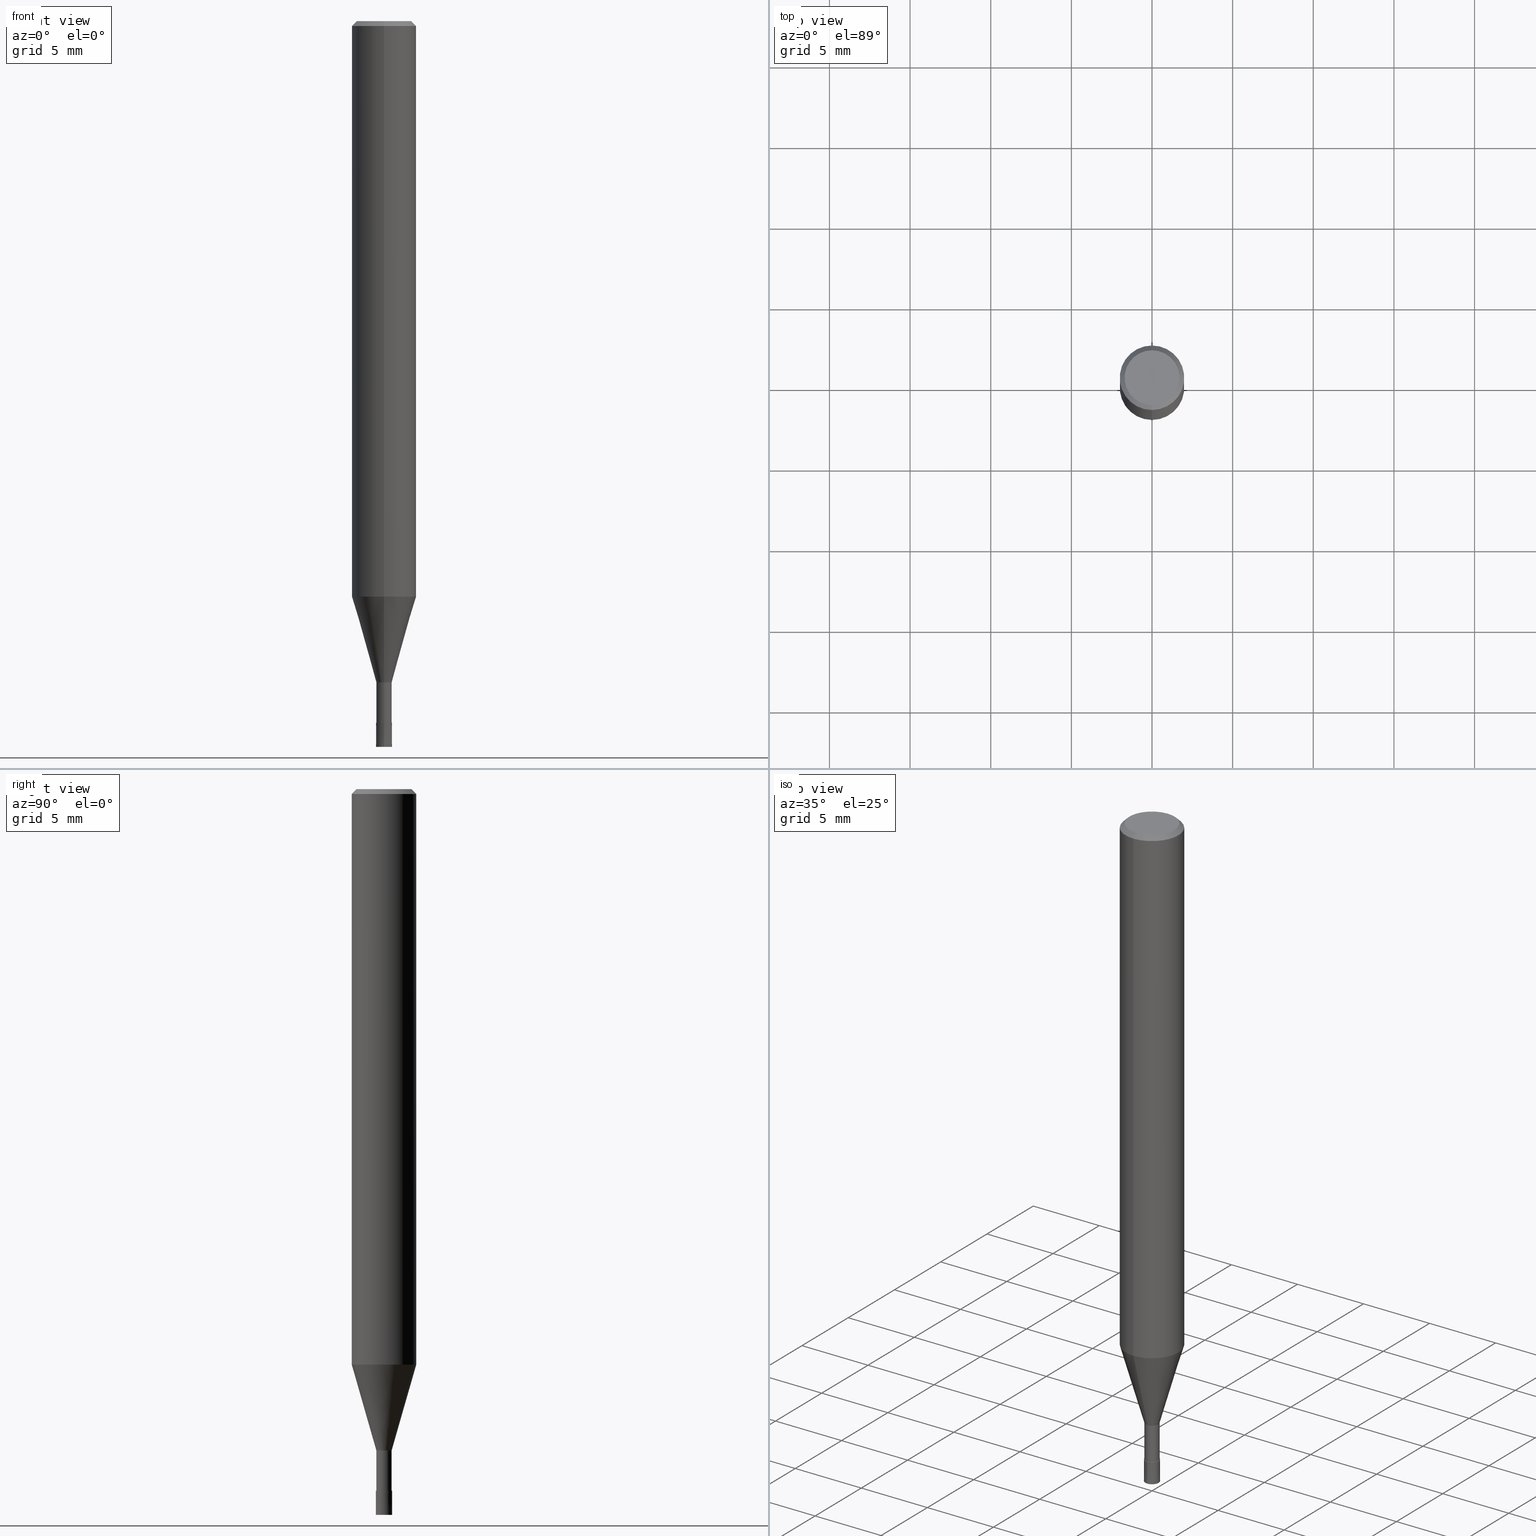
[diagram: canonical four-view strip — front | top / right | iso, engineering-drawing reading convention]
A machine part, canonical four-view strip (front | top / right | iso — engineering-drawing reading convention). The complete STEP part file that produces these views, byte-faithful:
ISO-10303-21;
HEADER;
FILE_DESCRIPTION(('no description'),'unknown implementation level');
FILE_NAME('HLS2010-040-Huellk.stp','  ',('CIMSOURCE GmbH'),('CADClick - KiM GmbH - www.kimweb.de'),'unknown preprocess','ACIS','unknown authorization');
FILE_SCHEMA(('automotive_design'));
ENDSEC;
DATA;
#1=MECHANICAL_DESIGN_GEOMETRIC_PRESENTATION_REPRESENTATION(' ',(#14,#15,#16,#17,#18,#19,#20,#21,#22,#23,#24,#25,#26,#27,#28,#29,#30,#31,#32,#33,#34,#35,#36,#37,#38,#39,#40,#41,#42,#43,#44,#45,#46,#47,#48,#49,#50,#51,#52,#53,#54,#55,#56,#57,#58,#59,#60,#61,#62,#63,#64,#65,#66,#67,#68,#69,#70,#71,#72),#10);
#2=PRODUCT_DEFINITION_CONTEXT('',#73,'design');
#3=APPLICATION_PROTOCOL_DEFINITION('INTERNATIONAL STANDARD','automotive_design',1994,#73);
#4=PRODUCT_CATEGORY_RELATIONSHIP('NONE','NONE',#74,#75);
#5=SHAPE_DEFINITION_REPRESENTATION(#76,#77);
#6=PRODUCT_DEFINITION_CONTEXT('',#78,'design');
#7=APPLICATION_PROTOCOL_DEFINITION('INTERNATIONAL STANDARD','automotive_design',1994,#78);
#8=PRODUCT_CATEGORY_RELATIONSHIP('NONE','NONE',#79,#80);
#9=SHAPE_DEFINITION_REPRESENTATION(#81,#82);
#10= (GEOMETRIC_REPRESENTATION_CONTEXT(3)GLOBAL_UNCERTAINTY_ASSIGNED_CONTEXT((#85))GLOBAL_UNIT_ASSIGNED_CONTEXT((#87,#88,#89))REPRESENTATION_CONTEXT('NONE','WORKSPACE'));
#14=STYLED_ITEM('',(#91),#92);
#15=STYLED_ITEM('',(#93),#94);
#16=STYLED_ITEM('',(#95),#96);
#17=STYLED_ITEM('',(#97),#98);
#18=STYLED_ITEM('',(#99),#100);
#19=STYLED_ITEM('',(#101),#102);
#20=STYLED_ITEM('',(#103),#104);
#21=STYLED_ITEM('',(#105),#106);
#22=STYLED_ITEM('',(#107),#108);
#23=STYLED_ITEM('',(#109),#110);
#24=STYLED_ITEM('',(#111),#112);
#25=STYLED_ITEM('',(#113),#114);
#26=STYLED_ITEM('',(#115),#116);
#27=STYLED_ITEM('',(#117),#118);
#28=STYLED_ITEM('',(#119),#120);
#29=STYLED_ITEM('',(#121),#122);
#30=STYLED_ITEM('',(#123),#124);
#31=STYLED_ITEM('',(#125),#126);
#32=STYLED_ITEM('',(#127),#128);
#33=STYLED_ITEM('',(#129),#130);
#34=STYLED_ITEM('',(#131),#132);
#35=STYLED_ITEM('',(#133),#134);
#36=STYLED_ITEM('',(#135),#136);
#37=STYLED_ITEM('',(#137),#138);
#38=STYLED_ITEM('',(#139),#140);
#39=STYLED_ITEM('',(#141),#142);
#40=STYLED_ITEM('',(#143),#144);
#41=STYLED_ITEM('',(#145),#146);
#42=STYLED_ITEM('',(#147),#148);
#43=STYLED_ITEM('',(#149),#150);
#44=STYLED_ITEM('',(#151),#152);
#45=STYLED_ITEM('',(#153),#154);
#46=STYLED_ITEM('',(#155),#156);
#47=STYLED_ITEM('',(#157),#158);
#48=STYLED_ITEM('',(#159),#160);
#49=STYLED_ITEM('',(#161),#162);
#50=STYLED_ITEM('',(#163),#164);
#51=STYLED_ITEM('',(#165),#166);
#52=STYLED_ITEM('',(#167),#168);
#53=STYLED_ITEM('',(#169),#170);
#54=STYLED_ITEM('',(#171),#172);
#55=STYLED_ITEM('',(#173),#174);
#56=STYLED_ITEM('',(#175),#176);
#57=STYLED_ITEM('',(#177),#178);
#58=STYLED_ITEM('',(#179),#180);
#59=STYLED_ITEM('',(#181),#182);
#60=STYLED_ITEM('',(#183),#184);
#61=STYLED_ITEM('',(#185),#186);
#62=STYLED_ITEM('',(#187),#188);
#63=STYLED_ITEM('',(#189),#190);
#64=STYLED_ITEM('',(#191),#192);
#65=STYLED_ITEM('',(#193),#194);
#66=STYLED_ITEM('',(#195),#196);
#67=STYLED_ITEM('',(#197),#198);
#68=STYLED_ITEM('',(#199),#200);
#69=STYLED_ITEM('',(#201),#202);
#70=STYLED_ITEM('',(#203),#204);
#71=STYLED_ITEM('',(#205),#206);
#72=STYLED_ITEM('',(#207),#208);
#73=APPLICATION_CONTEXT(' ');
#74=PRODUCT_CATEGORY('part','NONE');
#75=PRODUCT_RELATED_PRODUCT_CATEGORY('detail',' ',(#209));
#76=PRODUCT_DEFINITION_SHAPE('NONE','NONE',#210);
#77=ADVANCED_BREP_SHAPE_REPRESENTATION('1',(#156,#211),#10);
#78=APPLICATION_CONTEXT(' ');
#79=PRODUCT_CATEGORY('part','NONE');
#80=PRODUCT_RELATED_PRODUCT_CATEGORY('detail',' ',(#212));
#81=PRODUCT_DEFINITION_SHAPE('NONE','NONE',#213);
#82=ADVANCED_BREP_SHAPE_REPRESENTATION('2',(#184,#214),#10);
#85=UNCERTAINTY_MEASURE_WITH_UNIT(LENGTH_MEASURE(1.0E-006),#87,'','');
#87= (CONVERSION_BASED_UNIT('MILLIMETRE',#217)LENGTH_UNIT()NAMED_UNIT(#220));
#88= (NAMED_UNIT(#222)PLANE_ANGLE_UNIT()SI_UNIT($,.RADIAN.));
#89= (NAMED_UNIT(#222)SOLID_ANGLE_UNIT()SI_UNIT($,.STERADIAN.));
#91=PRESENTATION_STYLE_ASSIGNMENT((#228));
#92=ADVANCED_FACE('',(#229),#230,.T.);
#93=PRESENTATION_STYLE_ASSIGNMENT((#231));
#94=VERTEX_POINT('',#232);
#95=PRESENTATION_STYLE_ASSIGNMENT((#233));
#96=EDGE_CURVE('',#94,#188,#234,.T.);
#97=PRESENTATION_STYLE_ASSIGNMENT((#235));
#98=VERTEX_POINT('',#236);
#99=PRESENTATION_STYLE_ASSIGNMENT((#237));
#100=VERTEX_POINT('',#238);
#101=PRESENTATION_STYLE_ASSIGNMENT((#239));
#102=EDGE_CURVE('',#188,#100,#240,.T.);
#103=PRESENTATION_STYLE_ASSIGNMENT((#241));
#104=VERTEX_POINT('',#242);
#105=PRESENTATION_STYLE_ASSIGNMENT((#243));
#106=EDGE_CURVE('',#170,#112,#244,.T.);
#107=PRESENTATION_STYLE_ASSIGNMENT((#245));
#108=EDGE_CURVE('',#116,#174,#246,.T.);
#109=PRESENTATION_STYLE_ASSIGNMENT((#247));
#110=ADVANCED_FACE('',(#248),#249,.T.);
#111=PRESENTATION_STYLE_ASSIGNMENT((#250));
#112=VERTEX_POINT('',#251);
#113=PRESENTATION_STYLE_ASSIGNMENT((#252));
#114=EDGE_CURVE('',#204,#152,#253,.T.);
#115=PRESENTATION_STYLE_ASSIGNMENT((#254));
#116=VERTEX_POINT('',#255);
#117=PRESENTATION_STYLE_ASSIGNMENT((#256));
#118=ADVANCED_FACE('',(#257),#258,.T.);
#119=PRESENTATION_STYLE_ASSIGNMENT((#259));
#120=EDGE_CURVE('',#190,#94,#260,.T.);
#121=PRESENTATION_STYLE_ASSIGNMENT((#261));
#122=EDGE_CURVE('',#94,#190,#262,.T.);
#123=PRESENTATION_STYLE_ASSIGNMENT((#263));
#124=EDGE_CURVE('',#204,#112,#264,.T.);
#125=PRESENTATION_STYLE_ASSIGNMENT((#265));
#126=EDGE_CURVE('',#190,#140,#266,.T.);
#127=PRESENTATION_STYLE_ASSIGNMENT((#267));
#128=ADVANCED_FACE('',(#268),#269,.T.);
#129=PRESENTATION_STYLE_ASSIGNMENT((#270));
#130=EDGE_CURVE('',#174,#116,#271,.T.);
#131=PRESENTATION_STYLE_ASSIGNMENT((#272));
#132=ADVANCED_FACE('',(#273),#274,.T.);
#133=PRESENTATION_STYLE_ASSIGNMENT((#275));
#134=ADVANCED_FACE('',(#276),#277,.T.);
#135=PRESENTATION_STYLE_ASSIGNMENT((#278));
#136=VERTEX_POINT('',#279);
#137=PRESENTATION_STYLE_ASSIGNMENT((#280));
#138=ADVANCED_FACE('',(#281),#282,.T.);
#139=PRESENTATION_STYLE_ASSIGNMENT((#283));
#140=VERTEX_POINT('',#284);
#141=PRESENTATION_STYLE_ASSIGNMENT((#285));
#142=EDGE_CURVE('',#136,#186,#286,.T.);
#143=PRESENTATION_STYLE_ASSIGNMENT((#287));
#144=EDGE_CURVE('',#116,#186,#288,.T.);
#145=PRESENTATION_STYLE_ASSIGNMENT((#289));
#146=ADVANCED_FACE('',(#290),#291,.T.);
#147=PRESENTATION_STYLE_ASSIGNMENT((#292));
#148=EDGE_CURVE('',#170,#152,#293,.T.);
#149=PRESENTATION_STYLE_ASSIGNMENT((#294));
#150=EDGE_CURVE('',#152,#204,#295,.T.);
#151=PRESENTATION_STYLE_ASSIGNMENT((#296));
#152=VERTEX_POINT('',#297);
#153=PRESENTATION_STYLE_ASSIGNMENT((#298));
#154=EDGE_CURVE('',#140,#104,#299,.T.);
#155=PRESENTATION_STYLE_ASSIGNMENT((#300));
#156=MANIFOLD_SOLID_BREP('1',#301);
#157=PRESENTATION_STYLE_ASSIGNMENT((#302));
#158=EDGE_CURVE('',#100,#188,#303,.T.);
#159=PRESENTATION_STYLE_ASSIGNMENT((#304));
#160=ADVANCED_FACE('',(#305),#306,.T.);
#161=PRESENTATION_STYLE_ASSIGNMENT((#307));
#162=EDGE_CURVE('',#206,#98,#308,.T.);
#163=PRESENTATION_STYLE_ASSIGNMENT((#309));
#164=EDGE_CURVE('',#186,#136,#310,.T.);
#165=PRESENTATION_STYLE_ASSIGNMENT((#311));
#166=ADVANCED_FACE('',(#312),#313,.T.);
#167=PRESENTATION_STYLE_ASSIGNMENT((#314));
#168=ADVANCED_FACE('',(#315),#316,.T.);
#169=PRESENTATION_STYLE_ASSIGNMENT((#317));
#170=VERTEX_POINT('',#318);
#171=PRESENTATION_STYLE_ASSIGNMENT((#319));
#172=EDGE_CURVE('',#104,#94,#320,.T.);
#173=PRESENTATION_STYLE_ASSIGNMENT((#321));
#174=VERTEX_POINT('',#322);
#175=PRESENTATION_STYLE_ASSIGNMENT((#323));
#176=EDGE_CURVE('',#112,#170,#324,.T.);
#177=PRESENTATION_STYLE_ASSIGNMENT((#325));
#178=EDGE_CURVE('',#136,#174,#326,.T.);
#179=PRESENTATION_STYLE_ASSIGNMENT((#327));
#180=ADVANCED_FACE('',(#328),#329,.T.);
#181=PRESENTATION_STYLE_ASSIGNMENT((#330));
#182=EDGE_CURVE('',#112,#98,#331,.T.);
#183=PRESENTATION_STYLE_ASSIGNMENT((#332));
#184=MANIFOLD_SOLID_BREP('2',#333);
#185=PRESENTATION_STYLE_ASSIGNMENT((#334));
#186=VERTEX_POINT('',#335);
#187=PRESENTATION_STYLE_ASSIGNMENT((#336));
#188=VERTEX_POINT('',#337);
#189=PRESENTATION_STYLE_ASSIGNMENT((#338));
#190=VERTEX_POINT('',#339);
#191=PRESENTATION_STYLE_ASSIGNMENT((#340));
#192=EDGE_CURVE('',#104,#140,#341,.T.);
#193=PRESENTATION_STYLE_ASSIGNMENT((#342));
#194=EDGE_CURVE('',#98,#206,#343,.T.);
#195=PRESENTATION_STYLE_ASSIGNMENT((#344));
#196=ADVANCED_FACE('',(#345),#346,.T.);
#197=PRESENTATION_STYLE_ASSIGNMENT((#347));
#198=EDGE_CURVE('',#100,#190,#348,.T.);
#199=PRESENTATION_STYLE_ASSIGNMENT((#349));
#200=ADVANCED_FACE('',(#350,#351),#352,.T.);
#201=PRESENTATION_STYLE_ASSIGNMENT((#353));
#202=EDGE_CURVE('',#206,#170,#354,.T.);
#203=PRESENTATION_STYLE_ASSIGNMENT((#355));
#204=VERTEX_POINT('',#356);
#205=PRESENTATION_STYLE_ASSIGNMENT((#357));
#206=VERTEX_POINT('',#358);
#207=PRESENTATION_STYLE_ASSIGNMENT((#359));
#208=ADVANCED_FACE('',(#360),#361,.T.);
#209=PRODUCT('1','1','PART-1-DESC',(#362));
#210=PRODUCT_DEFINITION('NONE','NONE',#363,#2);
#211=AXIS2_PLACEMENT_3D('',#364,#365,#366);
#212=PRODUCT('2','2','PART-2-DESC',(#367));
#213=PRODUCT_DEFINITION('NONE','NONE',#368,#6);
#214=AXIS2_PLACEMENT_3D('',#369,#370,#371);
#217=LENGTH_MEASURE_WITH_UNIT(LENGTH_MEASURE(1.0),#372);
#220=DIMENSIONAL_EXPONENTS(1.0,0.0,0.0,0.0,0.0,0.0,0.0);
#222=DIMENSIONAL_EXPONENTS(0.0,0.0,0.0,0.0,0.0,0.0,0.0);
#228=SURFACE_STYLE_USAGE(.BOTH.,#373);
#229=FACE_OUTER_BOUND('',#374,.T.);
#230=CONICAL_SURFACE('',#375,1.85,0.785398163397453);
#231=POINT_STYLE(' ',#376,POSITIVE_LENGTH_MEASURE(1.0E-006),#377);
#232=CARTESIAN_POINT('',(0.0,2.0,-0.299999999999997));
#233=CURVE_STYLE('',#378,POSITIVE_LENGTH_MEASURE(1.0E-006),#379);
#234=LINE('',#380,#381);
#235=POINT_STYLE(' ',#382,POSITIVE_LENGTH_MEASURE(1.0E-006),#383);
#236=CARTESIAN_POINT('',(0.0,0.47495,-43.5));
#237=POINT_STYLE(' ',#384,POSITIVE_LENGTH_MEASURE(1.0E-006),#385);
#238=CARTESIAN_POINT('',(2.44921270764475E-016,-2.0,-35.682));
#239=CURVE_STYLE('',#386,POSITIVE_LENGTH_MEASURE(1.0E-006),#387);
#240=CIRCLE('',#388,2.0);
#241=POINT_STYLE(' ',#389,POSITIVE_LENGTH_MEASURE(1.0E-006),#390);
#242=CARTESIAN_POINT('',(0.0,1.7,0.0));
#243=CURVE_STYLE('',#391,POSITIVE_LENGTH_MEASURE(1.0E-006),#392);
#244=CIRCLE('',#393,0.47495);
#245=CURVE_STYLE('',#394,POSITIVE_LENGTH_MEASURE(1.0E-006),#395);
#246=CIRCLE('',#396,0.4999);
#247=SURFACE_STYLE_USAGE(.BOTH.,#397);
#248=FACE_OUTER_BOUND('',#398,.T.);
#249=CYLINDRICAL_SURFACE('',#399,2.0);
#250=POINT_STYLE(' ',#400,POSITIVE_LENGTH_MEASURE(1.0E-006),#401);
#251=CARTESIAN_POINT('',(0.0,0.47495,-41.0));
#252=CURVE_STYLE('',#402,POSITIVE_LENGTH_MEASURE(1.0E-006),#403);
#253=CIRCLE('',#404,1.99995);
#254=POINT_STYLE(' ',#405,POSITIVE_LENGTH_MEASURE(1.0E-006),#406);
#255=CARTESIAN_POINT('',(0.0,0.4999,-43.5));
#256=SURFACE_STYLE_USAGE(.BOTH.,#407);
#257=FACE_OUTER_BOUND('',#408,.T.);
#258=PLANE('',#409);
#259=CURVE_STYLE('',#410,POSITIVE_LENGTH_MEASURE(1.0E-006),#411);
#260=CIRCLE('',#412,2.0);
#261=CURVE_STYLE('',#413,POSITIVE_LENGTH_MEASURE(1.0E-006),#414);
#262=CIRCLE('',#415,2.0);
#263=CURVE_STYLE('',#416,POSITIVE_LENGTH_MEASURE(1.0E-006),#417);
#264=LINE('',#418,#419);
#265=CURVE_STYLE('',#420,POSITIVE_LENGTH_MEASURE(1.0E-006),#421);
#266=LINE('',#422,#423);
#267=SURFACE_STYLE_USAGE(.BOTH.,#424);
#268=FACE_OUTER_BOUND('',#425,.T.);
#269=CONICAL_SURFACE('',#426,1.85,0.785398163397453);
#270=CURVE_STYLE('',#427,POSITIVE_LENGTH_MEASURE(1.0E-006),#428);
#271=CIRCLE('',#429,0.4999);
#272=SURFACE_STYLE_USAGE(.BOTH.,#430);
#273=FACE_OUTER_BOUND('',#431,.T.);
#274=PLANE('',#432);
#275=SURFACE_STYLE_USAGE(.BOTH.,#433);
#276=FACE_OUTER_BOUND('',#434,.T.);
#277=CYLINDRICAL_SURFACE('',#435,2.0);
#278=POINT_STYLE(' ',#436,POSITIVE_LENGTH_MEASURE(1.0E-006),#437);
#279=CARTESIAN_POINT('',(6.12303176911189E-017,-0.5,-45.0));
#280=SURFACE_STYLE_USAGE(.BOTH.,#438);
#281=FACE_OUTER_BOUND('',#439,.T.);
#282=PLANE('',#440);
#283=POINT_STYLE(' ',#441,POSITIVE_LENGTH_MEASURE(1.0E-006),#442);
#284=CARTESIAN_POINT('',(2.08183080149804E-016,-1.7,0.0));
#285=CURVE_STYLE('',#443,POSITIVE_LENGTH_MEASURE(1.0E-006),#444);
#286=CIRCLE('',#445,0.5);
#287=CURVE_STYLE('',#446,POSITIVE_LENGTH_MEASURE(1.0E-006),#447);
#288=LINE('',#448,#449);
#289=SURFACE_STYLE_USAGE(.BOTH.,#450);
#290=FACE_OUTER_BOUND('',#451,.T.);
#291=CYLINDRICAL_SURFACE('',#452,0.47495);
#292=CURVE_STYLE('',#453,POSITIVE_LENGTH_MEASURE(1.0E-006),#454);
#293=LINE('',#455,#456);
#294=CURVE_STYLE('',#457,POSITIVE_LENGTH_MEASURE(1.0E-006),#458);
#295=CIRCLE('',#459,1.99995);
#296=POINT_STYLE(' ',#460,POSITIVE_LENGTH_MEASURE(1.0E-006),#461);
#297=CARTESIAN_POINT('',(2.44915147732706E-016,-1.99995,-35.682));
#298=CURVE_STYLE('',#462,POSITIVE_LENGTH_MEASURE(1.0E-006),#463);
#299=CIRCLE('',#464,1.7);
#300=SURFACE_STYLE_USAGE(.BOTH.,#465);
#301=CLOSED_SHELL('',(#146,#168,#134,#92,#200,#138,#128,#110,#160,#208,#118));
#302=CURVE_STYLE('',#466,POSITIVE_LENGTH_MEASURE(1.0E-006),#467);
#303=CIRCLE('',#468,2.0);
#304=SURFACE_STYLE_USAGE(.BOTH.,#469);
#305=FACE_OUTER_BOUND('',#470,.T.);
#306=CONICAL_SURFACE('',#471,1.23745,0.279267977304115);
#307=CURVE_STYLE('',#472,POSITIVE_LENGTH_MEASURE(1.0E-006),#473);
#308=CIRCLE('',#474,0.47495);
#309=CURVE_STYLE('',#475,POSITIVE_LENGTH_MEASURE(1.0E-006),#476);
#310=CIRCLE('',#477,0.5);
#311=SURFACE_STYLE_USAGE(.BOTH.,#478);
#312=FACE_OUTER_BOUND('',#479,.T.);
#313=CONICAL_SURFACE('',#480,0.49995,6.66666665678939E-005);
#314=SURFACE_STYLE_USAGE(.BOTH.,#481);
#315=FACE_OUTER_BOUND('',#482,.T.);
#316=CONICAL_SURFACE('',#483,1.23745,0.279267977304115);
#317=POINT_STYLE(' ',#484,POSITIVE_LENGTH_MEASURE(1.0E-006),#485);
#318=CARTESIAN_POINT('',(5.81626787747938E-017,-0.47495,-41.0));
#319=CURVE_STYLE('',#486,POSITIVE_LENGTH_MEASURE(1.0E-006),#487);
#320=LINE('',#488,#489);
#321=POINT_STYLE(' ',#490,POSITIVE_LENGTH_MEASURE(1.0E-006),#491);
#322=CARTESIAN_POINT('',(6.12180716275806E-017,-0.4999,-43.5));
#323=CURVE_STYLE('',#492,POSITIVE_LENGTH_MEASURE(1.0E-006),#493);
#324=CIRCLE('',#494,0.47495);
#325=CURVE_STYLE('',#495,POSITIVE_LENGTH_MEASURE(1.0E-006),#496);
#326=LINE('',#497,#498);
#327=SURFACE_STYLE_USAGE(.BOTH.,#499);
#328=FACE_OUTER_BOUND('',#500,.T.);
#329=PLANE('',#501);
#330=CURVE_STYLE('',#502,POSITIVE_LENGTH_MEASURE(1.0E-006),#503);
#331=LINE('',#504,#505);
#332=SURFACE_STYLE_USAGE(.BOTH.,#506);
#333=CLOSED_SHELL('',(#166,#132,#196,#180));
#334=POINT_STYLE(' ',#507,POSITIVE_LENGTH_MEASURE(1.0E-006),#508);
#335=CARTESIAN_POINT('',(0.0,0.5,-45.0));
#336=POINT_STYLE(' ',#509,POSITIVE_LENGTH_MEASURE(1.0E-006),#510);
#337=CARTESIAN_POINT('',(0.0,2.0,-35.682));
#338=POINT_STYLE(' ',#511,POSITIVE_LENGTH_MEASURE(1.0E-006),#512);
#339=CARTESIAN_POINT('',(2.44921270764475E-016,-2.0,-0.299999999999997));
#340=CURVE_STYLE('',#513,POSITIVE_LENGTH_MEASURE(1.0E-006),#514);
#341=CIRCLE('',#515,1.7);
#342=CURVE_STYLE('',#516,POSITIVE_LENGTH_MEASURE(1.0E-006),#517);
#343=CIRCLE('',#518,0.47495);
#344=SURFACE_STYLE_USAGE(.BOTH.,#519);
#345=FACE_OUTER_BOUND('',#520,.T.);
#346=CONICAL_SURFACE('',#521,0.49995,6.66666665678939E-005);
#347=CURVE_STYLE('',#522,POSITIVE_LENGTH_MEASURE(1.0E-006),#523);
#348=LINE('',#524,#525);
#349=SURFACE_STYLE_USAGE(.BOTH.,#526);
#350=FACE_OUTER_BOUND('',#527,.T.);
#351=FACE_BOUND('',#528,.T.);
#352=PLANE('',#529);
#353=CURVE_STYLE('',#530,POSITIVE_LENGTH_MEASURE(1.0E-006),#531);
#354=LINE('',#532,#533);
#355=POINT_STYLE(' ',#534,POSITIVE_LENGTH_MEASURE(1.0E-006),#535);
#356=CARTESIAN_POINT('',(0.0,1.99995,-35.682));
#357=POINT_STYLE(' ',#536,POSITIVE_LENGTH_MEASURE(1.0E-006),#537);
#358=CARTESIAN_POINT('',(5.81626787747938E-017,-0.47495,-43.5));
#359=SURFACE_STYLE_USAGE(.BOTH.,#538);
#360=FACE_OUTER_BOUND('',#539,.T.);
#361=CYLINDRICAL_SURFACE('',#540,0.47495);
#362=PRODUCT_CONTEXT('',#73,'mechanical');
#363=PRODUCT_DEFINITION_FORMATION_WITH_SPECIFIED_SOURCE(' ','NONE',#209,.NOT_KNOWN.);
#364=CARTESIAN_POINT('',(0.0,0.0,0.0));
#365=DIRECTION('',(0.0,0.0,1.0));
#366=DIRECTION('',(1.0,0.0,0.0));
#367=PRODUCT_CONTEXT('',#78,'mechanical');
#368=PRODUCT_DEFINITION_FORMATION_WITH_SPECIFIED_SOURCE(' ','NONE',#212,.NOT_KNOWN.);
#369=CARTESIAN_POINT('',(0.0,0.0,0.0));
#370=DIRECTION('',(0.0,0.0,1.0));
#371=DIRECTION('',(1.0,0.0,0.0));
#372= (NAMED_UNIT(#220)LENGTH_UNIT()SI_UNIT(.MILLI.,.METRE.));
#373=SURFACE_SIDE_STYLE('',(#542));
#374=EDGE_LOOP('',(#543,#544,#545,#546));
#375=AXIS2_PLACEMENT_3D('',#547,#548,#549);
#376=PRE_DEFINED_MARKER('');
#377=COLOUR_RGB('',0.498039215803146,0.498039215803146,0.498039215803146);
#378=DRAUGHTING_PRE_DEFINED_CURVE_FONT('continuous');
#379=COLOUR_RGB('',0.498039215803146,0.498039215803146,0.498039215803146);
#380=CARTESIAN_POINT('',(-2.44921270764475E-016,2.0,-17.991));
#381=VECTOR('',#550,1.0);
#382=PRE_DEFINED_MARKER('');
#383=COLOUR_RGB('',0.498039215803146,0.498039215803146,0.498039215803146);
#384=PRE_DEFINED_MARKER('');
#385=COLOUR_RGB('',0.498039215803146,0.498039215803146,0.498039215803146);
#386=DRAUGHTING_PRE_DEFINED_CURVE_FONT('continuous');
#387=COLOUR_RGB('',0.498039215803146,0.498039215803146,0.498039215803146);
#388=AXIS2_PLACEMENT_3D('',#551,#552,#553);
#389=PRE_DEFINED_MARKER('');
#390=COLOUR_RGB('',0.498039215803146,0.498039215803146,0.498039215803146);
#391=DRAUGHTING_PRE_DEFINED_CURVE_FONT('continuous');
#392=COLOUR_RGB('',0.498039215803146,0.498039215803146,0.498039215803146);
#393=AXIS2_PLACEMENT_3D('',#554,#555,#556);
#394=DRAUGHTING_PRE_DEFINED_CURVE_FONT('continuous');
#395=COLOUR_RGB('',0.800000011920929,0.800000011920929,0.800000011920929);
#396=AXIS2_PLACEMENT_3D('',#557,#558,#559);
#397=SURFACE_SIDE_STYLE('',(#560));
#398=EDGE_LOOP('',(#561,#562,#563,#564));
#399=AXIS2_PLACEMENT_3D('',#565,#566,#567);
#400=PRE_DEFINED_MARKER('');
#401=COLOUR_RGB('',0.498039215803146,0.498039215803146,0.498039215803146);
#402=DRAUGHTING_PRE_DEFINED_CURVE_FONT('continuous');
#403=COLOUR_RGB('',0.498039215803146,0.498039215803146,0.498039215803146);
#404=AXIS2_PLACEMENT_3D('',#568,#569,#570);
#405=PRE_DEFINED_MARKER('');
#406=COLOUR_RGB('',0.800000011920929,0.800000011920929,0.800000011920929);
#407=SURFACE_SIDE_STYLE('',(#571));
#408=EDGE_LOOP('',(#572,#573));
#409=AXIS2_PLACEMENT_3D('',#574,#575,#576);
#410=DRAUGHTING_PRE_DEFINED_CURVE_FONT('continuous');
#411=COLOUR_RGB('',0.498039215803146,0.498039215803146,0.498039215803146);
#412=AXIS2_PLACEMENT_3D('',#577,#578,#579);
#413=DRAUGHTING_PRE_DEFINED_CURVE_FONT('continuous');
#414=COLOUR_RGB('',0.498039215803146,0.498039215803146,0.498039215803146);
#415=AXIS2_PLACEMENT_3D('',#580,#581,#582);
#416=DRAUGHTING_PRE_DEFINED_CURVE_FONT('continuous');
#417=COLOUR_RGB('',0.498039215803146,0.498039215803146,0.498039215803146);
#418=CARTESIAN_POINT('',(-1.5153891325375E-016,1.23745,-38.341));
#419=VECTOR('',#583,1.0);
#420=DRAUGHTING_PRE_DEFINED_CURVE_FONT('continuous');
#421=COLOUR_RGB('',0.498039215803146,0.498039215803146,0.498039215803146);
#422=CARTESIAN_POINT('',(2.2655217545714E-016,-1.85,-0.149999999999999));
#423=VECTOR('',#584,1.0);
#424=SURFACE_SIDE_STYLE('',(#585));
#425=EDGE_LOOP('',(#586,#587,#588,#589));
#426=AXIS2_PLACEMENT_3D('',#590,#591,#592);
#427=DRAUGHTING_PRE_DEFINED_CURVE_FONT('continuous');
#428=COLOUR_RGB('',0.800000011920929,0.800000011920929,0.800000011920929);
#429=AXIS2_PLACEMENT_3D('',#593,#594,#595);
#430=SURFACE_SIDE_STYLE('',(#596));
#431=EDGE_LOOP('',(#597,#598));
#432=AXIS2_PLACEMENT_3D('',#599,#600,#601);
#433=SURFACE_SIDE_STYLE('',(#602));
#434=EDGE_LOOP('',(#603,#604,#605,#606));
#435=AXIS2_PLACEMENT_3D('',#607,#608,#609);
#436=PRE_DEFINED_MARKER('');
#437=COLOUR_RGB('',0.800000011920929,0.800000011920929,0.800000011920929);
#438=SURFACE_SIDE_STYLE('',(#610));
#439=EDGE_LOOP('',(#611,#612));
#440=AXIS2_PLACEMENT_3D('',#613,#614,#615);
#441=PRE_DEFINED_MARKER('');
#442=COLOUR_RGB('',0.498039215803146,0.498039215803146,0.498039215803146);
#443=DRAUGHTING_PRE_DEFINED_CURVE_FONT('continuous');
#444=COLOUR_RGB('',0.800000011920929,0.800000011920929,0.800000011920929);
#445=AXIS2_PLACEMENT_3D('',#616,#617,#618);
#446=DRAUGHTING_PRE_DEFINED_CURVE_FONT('continuous');
#447=COLOUR_RGB('',0.800000011920929,0.800000011920929,0.800000011920929);
#448=CARTESIAN_POINT('',(-6.12241946593497E-017,0.49995,-44.25));
#449=VECTOR('',#619,1.0);
#450=SURFACE_SIDE_STYLE('',(#620));
#451=EDGE_LOOP('',(#621,#622,#623,#624));
#452=AXIS2_PLACEMENT_3D('',#625,#626,#627);
#453=DRAUGHTING_PRE_DEFINED_CURVE_FONT('continuous');
#454=COLOUR_RGB('',0.498039215803146,0.498039215803146,0.498039215803146);
#455=CARTESIAN_POINT('',(1.5153891325375E-016,-1.23745,-38.341));
#456=VECTOR('',#628,1.0);
#457=DRAUGHTING_PRE_DEFINED_CURVE_FONT('continuous');
#458=COLOUR_RGB('',0.498039215803146,0.498039215803146,0.498039215803146);
#459=AXIS2_PLACEMENT_3D('',#629,#630,#631);
#460=PRE_DEFINED_MARKER('');
#461=COLOUR_RGB('',0.498039215803146,0.498039215803146,0.498039215803146);
#462=DRAUGHTING_PRE_DEFINED_CURVE_FONT('continuous');
#463=COLOUR_RGB('',0.498039215803146,0.498039215803146,0.498039215803146);
#464=AXIS2_PLACEMENT_3D('',#632,#633,#634);
#465=SURFACE_SIDE_STYLE('',(#635));
#466=DRAUGHTING_PRE_DEFINED_CURVE_FONT('continuous');
#467=COLOUR_RGB('',0.498039215803146,0.498039215803146,0.498039215803146);
#468=AXIS2_PLACEMENT_3D('',#636,#637,#638);
#469=SURFACE_SIDE_STYLE('',(#639));
#470=EDGE_LOOP('',(#640,#641,#642,#643));
#471=AXIS2_PLACEMENT_3D('',#644,#645,#646);
#472=DRAUGHTING_PRE_DEFINED_CURVE_FONT('continuous');
#473=COLOUR_RGB('',0.498039215803146,0.498039215803146,0.498039215803146);
#474=AXIS2_PLACEMENT_3D('',#647,#648,#649);
#475=DRAUGHTING_PRE_DEFINED_CURVE_FONT('continuous');
#476=COLOUR_RGB('',0.800000011920929,0.800000011920929,0.800000011920929);
#477=AXIS2_PLACEMENT_3D('',#650,#651,#652);
#478=SURFACE_SIDE_STYLE('',(#653));
#479=EDGE_LOOP('',(#654,#655,#656,#657));
#480=AXIS2_PLACEMENT_3D('',#658,#659,#660);
#481=SURFACE_SIDE_STYLE('',(#661));
#482=EDGE_LOOP('',(#662,#663,#664,#665));
#483=AXIS2_PLACEMENT_3D('',#666,#667,#668);
#484=PRE_DEFINED_MARKER('');
#485=COLOUR_RGB('',0.498039215803146,0.498039215803146,0.498039215803146);
#486=DRAUGHTING_PRE_DEFINED_CURVE_FONT('continuous');
#487=COLOUR_RGB('',0.498039215803146,0.498039215803146,0.498039215803146);
#488=CARTESIAN_POINT('',(-2.2655217545714E-016,1.85,-0.149999999999999));
#489=VECTOR('',#669,1.0);
#490=PRE_DEFINED_MARKER('');
#491=COLOUR_RGB('',0.800000011920929,0.800000011920929,0.800000011920929);
#492=DRAUGHTING_PRE_DEFINED_CURVE_FONT('continuous');
#493=COLOUR_RGB('',0.498039215803146,0.498039215803146,0.498039215803146);
#494=AXIS2_PLACEMENT_3D('',#670,#671,#672);
#495=DRAUGHTING_PRE_DEFINED_CURVE_FONT('continuous');
#496=COLOUR_RGB('',0.800000011920929,0.800000011920929,0.800000011920929);
#497=CARTESIAN_POINT('',(6.12241946593497E-017,-0.49995,-44.25));
#498=VECTOR('',#673,1.0);
#499=SURFACE_SIDE_STYLE('',(#674));
#500=EDGE_LOOP('',(#675,#676));
#501=AXIS2_PLACEMENT_3D('',#677,#678,#679);
#502=DRAUGHTING_PRE_DEFINED_CURVE_FONT('continuous');
#503=COLOUR_RGB('',0.498039215803146,0.498039215803146,0.498039215803146);
#504=CARTESIAN_POINT('',(-5.81626787747938E-017,0.47495,-42.25));
#505=VECTOR('',#680,1.0);
#506=SURFACE_SIDE_STYLE('',(#681));
#507=PRE_DEFINED_MARKER('');
#508=COLOUR_RGB('',0.800000011920929,0.800000011920929,0.800000011920929);
#509=PRE_DEFINED_MARKER('');
#510=COLOUR_RGB('',0.498039215803146,0.498039215803146,0.498039215803146);
#511=PRE_DEFINED_MARKER('');
#512=COLOUR_RGB('',0.498039215803146,0.498039215803146,0.498039215803146);
#513=DRAUGHTING_PRE_DEFINED_CURVE_FONT('continuous');
#514=COLOUR_RGB('',0.498039215803146,0.498039215803146,0.498039215803146);
#515=AXIS2_PLACEMENT_3D('',#682,#683,#684);
#516=DRAUGHTING_PRE_DEFINED_CURVE_FONT('continuous');
#517=COLOUR_RGB('',0.498039215803146,0.498039215803146,0.498039215803146);
#518=AXIS2_PLACEMENT_3D('',#685,#686,#687);
#519=SURFACE_SIDE_STYLE('',(#688));
#520=EDGE_LOOP('',(#689,#690,#691,#692));
#521=AXIS2_PLACEMENT_3D('',#693,#694,#695);
#522=DRAUGHTING_PRE_DEFINED_CURVE_FONT('continuous');
#523=COLOUR_RGB('',0.498039215803146,0.498039215803146,0.498039215803146);
#524=CARTESIAN_POINT('',(2.44921270764475E-016,-2.0,-17.991));
#525=VECTOR('',#696,1.0);
#526=SURFACE_SIDE_STYLE('',(#697));
#527=EDGE_LOOP('',(#698,#699));
#528=EDGE_LOOP('',(#700,#701));
#529=AXIS2_PLACEMENT_3D('',#702,#703,#704);
#530=DRAUGHTING_PRE_DEFINED_CURVE_FONT('continuous');
#531=COLOUR_RGB('',0.498039215803146,0.498039215803146,0.498039215803146);
#532=CARTESIAN_POINT('',(5.81626787747938E-017,-0.47495,-42.25));
#533=VECTOR('',#705,1.0);
#534=PRE_DEFINED_MARKER('');
#535=COLOUR_RGB('',0.498039215803146,0.498039215803146,0.498039215803146);
#536=PRE_DEFINED_MARKER('');
#537=COLOUR_RGB('',0.498039215803146,0.498039215803146,0.498039215803146);
#538=SURFACE_SIDE_STYLE('',(#706));
#539=EDGE_LOOP('',(#707,#708,#709,#710));
#540=AXIS2_PLACEMENT_3D('',#711,#712,#713);
#542=SURFACE_STYLE_FILL_AREA(#714);
#543=ORIENTED_EDGE('',*,*,#172,.F.);
#544=ORIENTED_EDGE('',*,*,#192,.T.);
#545=ORIENTED_EDGE('',*,*,#126,.F.);
#546=ORIENTED_EDGE('',*,*,#122,.F.);
#547=CARTESIAN_POINT('',(0.0,0.0,-0.149999999999999));
#548=DIRECTION('',(0.0,-0.0,-1.0));
#549=DIRECTION('',(0.0,1.0,0.0));
#550=DIRECTION('',(0.0,0.0,-1.0));
#551=CARTESIAN_POINT('',(0.0,0.0,-35.682));
#552=DIRECTION('',(0.0,0.0,-1.0));
#553=DIRECTION('',(0.0,1.0,0.0));
#554=CARTESIAN_POINT('',(0.0,0.0,-41.0));
#555=DIRECTION('',(0.0,0.0,-1.0));
#556=DIRECTION('',(0.0,1.0,0.0));
#557=CARTESIAN_POINT('',(0.0,0.0,-43.5));
#558=DIRECTION('',(0.0,0.0,-1.0));
#559=DIRECTION('',(0.0,1.0,0.0));
#560=SURFACE_STYLE_FILL_AREA(#715);
#561=ORIENTED_EDGE('',*,*,#96,.T.);
#562=ORIENTED_EDGE('',*,*,#158,.F.);
#563=ORIENTED_EDGE('',*,*,#198,.T.);
#564=ORIENTED_EDGE('',*,*,#120,.T.);
#565=CARTESIAN_POINT('',(0.0,0.0,-17.991));
#566=DIRECTION('',(-0.0,-0.0,1.0));
#567=DIRECTION('',(0.0,1.0,0.0));
#568=CARTESIAN_POINT('',(0.0,0.0,-35.682));
#569=DIRECTION('',(0.0,0.0,-1.0));
#570=DIRECTION('',(0.0,1.0,0.0));
#571=SURFACE_STYLE_FILL_AREA(#716);
#572=ORIENTED_EDGE('',*,*,#194,.T.);
#573=ORIENTED_EDGE('',*,*,#162,.T.);
#574=CARTESIAN_POINT('',(0.0,0.237475,-43.5));
#575=DIRECTION('',(0.0,0.0,-1.0));
#576=DIRECTION('',(0.0,1.0,0.0));
#577=CARTESIAN_POINT('',(0.0,0.0,-0.299999999999997));
#578=DIRECTION('',(0.0,0.0,-1.0));
#579=DIRECTION('',(0.0,1.0,0.0));
#580=CARTESIAN_POINT('',(0.0,0.0,-0.299999999999997));
#581=DIRECTION('',(0.0,0.0,-1.0));
#582=DIRECTION('',(0.0,1.0,0.0));
#583=DIRECTION('',(3.37565264353533E-017,-0.275652060190515,-0.961257479405349));
#584=DIRECTION('',(-8.6592745707194E-017,0.707106781186551,0.707106781186544));
#585=SURFACE_STYLE_FILL_AREA(#717);
#586=ORIENTED_EDGE('',*,*,#172,.T.);
#587=ORIENTED_EDGE('',*,*,#120,.F.);
#588=ORIENTED_EDGE('',*,*,#126,.T.);
#589=ORIENTED_EDGE('',*,*,#154,.T.);
#590=CARTESIAN_POINT('',(0.0,0.0,-0.149999999999999));
#591=DIRECTION('',(0.0,-0.0,-1.0));
#592=DIRECTION('',(0.0,1.0,0.0));
#593=CARTESIAN_POINT('',(0.0,0.0,-43.5));
#594=DIRECTION('',(0.0,0.0,-1.0));
#595=DIRECTION('',(0.0,1.0,0.0));
#596=SURFACE_STYLE_FILL_AREA(#718);
#597=ORIENTED_EDGE('',*,*,#108,.F.);
#598=ORIENTED_EDGE('',*,*,#130,.F.);
#599=CARTESIAN_POINT('',(0.0,0.24995,-43.5));
#600=DIRECTION('',(-0.0,0.0,1.0));
#601=DIRECTION('',(0.0,-1.0,0.0));
#602=SURFACE_STYLE_FILL_AREA(#719);
#603=ORIENTED_EDGE('',*,*,#96,.F.);
#604=ORIENTED_EDGE('',*,*,#122,.T.);
#605=ORIENTED_EDGE('',*,*,#198,.F.);
#606=ORIENTED_EDGE('',*,*,#102,.F.);
#607=CARTESIAN_POINT('',(0.0,0.0,-17.991));
#608=DIRECTION('',(-0.0,-0.0,1.0));
#609=DIRECTION('',(0.0,1.0,0.0));
#610=SURFACE_STYLE_FILL_AREA(#720);
#611=ORIENTED_EDGE('',*,*,#192,.F.);
#612=ORIENTED_EDGE('',*,*,#154,.F.);
#613=CARTESIAN_POINT('',(0.0,0.85,0.0));
#614=DIRECTION('',(-0.0,0.0,1.0));
#615=DIRECTION('',(0.0,-1.0,0.0));
#616=CARTESIAN_POINT('',(0.0,0.0,-45.0));
#617=DIRECTION('',(0.0,0.0,-1.0));
#618=DIRECTION('',(0.0,1.0,0.0));
#619=DIRECTION('',(-8.16404234067263E-021,6.66666665185112E-005,-0.999999997777778));
#620=SURFACE_STYLE_FILL_AREA(#721);
#621=ORIENTED_EDGE('',*,*,#182,.F.);
#622=ORIENTED_EDGE('',*,*,#176,.T.);
#623=ORIENTED_EDGE('',*,*,#202,.F.);
#624=ORIENTED_EDGE('',*,*,#194,.F.);
#625=CARTESIAN_POINT('',(0.0,0.0,-42.25));
#626=DIRECTION('',(-0.0,-0.0,1.0));
#627=DIRECTION('',(0.0,1.0,0.0));
#628=DIRECTION('',(3.37565264353533E-017,-0.275652060190515,0.961257479405349));
#629=CARTESIAN_POINT('',(0.0,0.0,-35.682));
#630=DIRECTION('',(0.0,0.0,-1.0));
#631=DIRECTION('',(0.0,1.0,0.0));
#632=CARTESIAN_POINT('',(0.0,0.0,0.0));
#633=DIRECTION('',(0.0,0.0,-1.0));
#634=DIRECTION('',(0.0,1.0,0.0));
#635=SURFACE_STYLE_FILL_AREA(#722);
#636=CARTESIAN_POINT('',(0.0,0.0,-35.682));
#637=DIRECTION('',(0.0,0.0,-1.0));
#638=DIRECTION('',(0.0,1.0,0.0));
#639=SURFACE_STYLE_FILL_AREA(#723);
#640=ORIENTED_EDGE('',*,*,#124,.T.);
#641=ORIENTED_EDGE('',*,*,#106,.F.);
#642=ORIENTED_EDGE('',*,*,#148,.T.);
#643=ORIENTED_EDGE('',*,*,#150,.T.);
#644=CARTESIAN_POINT('',(0.0,0.0,-38.341));
#645=DIRECTION('',(-0.0,-0.0,1.0));
#646=DIRECTION('',(0.0,1.0,0.0));
#647=CARTESIAN_POINT('',(0.0,0.0,-43.5));
#648=DIRECTION('',(0.0,0.0,-1.0));
#649=DIRECTION('',(0.0,1.0,0.0));
#650=CARTESIAN_POINT('',(0.0,0.0,-45.0));
#651=DIRECTION('',(0.0,0.0,-1.0));
#652=DIRECTION('',(0.0,1.0,0.0));
#653=SURFACE_STYLE_FILL_AREA(#724);
#654=ORIENTED_EDGE('',*,*,#144,.F.);
#655=ORIENTED_EDGE('',*,*,#108,.T.);
#656=ORIENTED_EDGE('',*,*,#178,.F.);
#657=ORIENTED_EDGE('',*,*,#164,.F.);
#658=CARTESIAN_POINT('',(0.0,0.0,-44.25));
#659=DIRECTION('',(0.0,-0.0,-1.0));
#660=DIRECTION('',(0.0,1.0,0.0));
#661=SURFACE_STYLE_FILL_AREA(#725);
#662=ORIENTED_EDGE('',*,*,#124,.F.);
#663=ORIENTED_EDGE('',*,*,#114,.T.);
#664=ORIENTED_EDGE('',*,*,#148,.F.);
#665=ORIENTED_EDGE('',*,*,#176,.F.);
#666=CARTESIAN_POINT('',(0.0,0.0,-38.341));
#667=DIRECTION('',(-0.0,-0.0,1.0));
#668=DIRECTION('',(0.0,1.0,0.0));
#669=DIRECTION('',(-8.6592745707194E-017,0.707106781186551,-0.707106781186544));
#670=CARTESIAN_POINT('',(0.0,0.0,-41.0));
#671=DIRECTION('',(0.0,0.0,-1.0));
#672=DIRECTION('',(0.0,1.0,0.0));
#673=DIRECTION('',(-8.16404234067263E-021,6.66666665185112E-005,0.999999997777778));
#674=SURFACE_STYLE_FILL_AREA(#726);
#675=ORIENTED_EDGE('',*,*,#164,.T.);
#676=ORIENTED_EDGE('',*,*,#142,.T.);
#677=CARTESIAN_POINT('',(0.0,0.2475,-45.0));
#678=DIRECTION('',(0.0,0.0,-1.0));
#679=DIRECTION('',(0.0,1.0,0.0));
#680=DIRECTION('',(0.0,0.0,-1.0));
#681=SURFACE_STYLE_FILL_AREA(#727);
#682=CARTESIAN_POINT('',(0.0,0.0,0.0));
#683=DIRECTION('',(0.0,0.0,-1.0));
#684=DIRECTION('',(0.0,1.0,0.0));
#685=CARTESIAN_POINT('',(0.0,0.0,-43.5));
#686=DIRECTION('',(0.0,0.0,-1.0));
#687=DIRECTION('',(0.0,1.0,0.0));
#688=SURFACE_STYLE_FILL_AREA(#728);
#689=ORIENTED_EDGE('',*,*,#144,.T.);
#690=ORIENTED_EDGE('',*,*,#142,.F.);
#691=ORIENTED_EDGE('',*,*,#178,.T.);
#692=ORIENTED_EDGE('',*,*,#130,.T.);
#693=CARTESIAN_POINT('',(0.0,0.0,-44.25));
#694=DIRECTION('',(0.0,-0.0,-1.0));
#695=DIRECTION('',(0.0,1.0,0.0));
#696=DIRECTION('',(-0.0,-0.0,1.0));
#697=SURFACE_STYLE_FILL_AREA(#729);
#698=ORIENTED_EDGE('',*,*,#102,.T.);
#699=ORIENTED_EDGE('',*,*,#158,.T.);
#700=ORIENTED_EDGE('',*,*,#114,.F.);
#701=ORIENTED_EDGE('',*,*,#150,.F.);
#702=CARTESIAN_POINT('',(0.0,1.0,-35.682));
#703=DIRECTION('',(0.0,0.0,-1.0));
#704=DIRECTION('',(0.0,1.0,0.0));
#705=DIRECTION('',(-0.0,-0.0,1.0));
#706=SURFACE_STYLE_FILL_AREA(#730);
#707=ORIENTED_EDGE('',*,*,#182,.T.);
#708=ORIENTED_EDGE('',*,*,#162,.F.);
#709=ORIENTED_EDGE('',*,*,#202,.T.);
#710=ORIENTED_EDGE('',*,*,#106,.T.);
#711=CARTESIAN_POINT('',(0.0,0.0,-42.25));
#712=DIRECTION('',(-0.0,-0.0,1.0));
#713=DIRECTION('',(0.0,1.0,0.0));
#714=FILL_AREA_STYLE('',(#731));
#715=FILL_AREA_STYLE('',(#732));
#716=FILL_AREA_STYLE('',(#733));
#717=FILL_AREA_STYLE('',(#734));
#718=FILL_AREA_STYLE('',(#735));
#719=FILL_AREA_STYLE('',(#736));
#720=FILL_AREA_STYLE('',(#737));
#721=FILL_AREA_STYLE('',(#738));
#722=FILL_AREA_STYLE('',(#739));
#723=FILL_AREA_STYLE('',(#740));
#724=FILL_AREA_STYLE('',(#741));
#725=FILL_AREA_STYLE('',(#742));
#726=FILL_AREA_STYLE('',(#743));
#727=FILL_AREA_STYLE('',(#744));
#728=FILL_AREA_STYLE('',(#745));
#729=FILL_AREA_STYLE('',(#746));
#730=FILL_AREA_STYLE('',(#747));
#731=FILL_AREA_STYLE_COLOUR('',#748);
#732=FILL_AREA_STYLE_COLOUR('',#749);
#733=FILL_AREA_STYLE_COLOUR('',#750);
#734=FILL_AREA_STYLE_COLOUR('',#751);
#735=FILL_AREA_STYLE_COLOUR('',#752);
#736=FILL_AREA_STYLE_COLOUR('',#753);
#737=FILL_AREA_STYLE_COLOUR('',#754);
#738=FILL_AREA_STYLE_COLOUR('',#755);
#739=FILL_AREA_STYLE_COLOUR('',#756);
#740=FILL_AREA_STYLE_COLOUR('',#757);
#741=FILL_AREA_STYLE_COLOUR('',#758);
#742=FILL_AREA_STYLE_COLOUR('',#759);
#743=FILL_AREA_STYLE_COLOUR('',#760);
#744=FILL_AREA_STYLE_COLOUR('',#761);
#745=FILL_AREA_STYLE_COLOUR('',#762);
#746=FILL_AREA_STYLE_COLOUR('',#763);
#747=FILL_AREA_STYLE_COLOUR('',#764);
#748=COLOUR_RGB('',0.498039215803146,0.498039215803146,0.498039215803146);
#749=COLOUR_RGB('',0.498039215803146,0.498039215803146,0.498039215803146);
#750=COLOUR_RGB('',0.498039215803146,0.498039215803146,0.498039215803146);
#751=COLOUR_RGB('',0.498039215803146,0.498039215803146,0.498039215803146);
#752=COLOUR_RGB('',0.800000011920929,0.800000011920929,0.800000011920929);
#753=COLOUR_RGB('',0.498039215803146,0.498039215803146,0.498039215803146);
#754=COLOUR_RGB('',0.498039215803146,0.498039215803146,0.498039215803146);
#755=COLOUR_RGB('',0.498039215803146,0.498039215803146,0.498039215803146);
#756=COLOUR_RGB('',0.498039215803146,0.498039215803146,0.498039215803146);
#757=COLOUR_RGB('',0.498039215803146,0.498039215803146,0.498039215803146);
#758=COLOUR_RGB('',0.800000011920929,0.800000011920929,0.800000011920929);
#759=COLOUR_RGB('',0.498039215803146,0.498039215803146,0.498039215803146);
#760=COLOUR_RGB('',0.800000011920929,0.800000011920929,0.800000011920929);
#761=COLOUR_RGB('',0.800000011920929,0.800000011920929,0.800000011920929);
#762=COLOUR_RGB('',0.800000011920929,0.800000011920929,0.800000011920929);
#763=COLOUR_RGB('',0.498039215803146,0.498039215803146,0.498039215803146);
#764=COLOUR_RGB('',0.498039215803146,0.498039215803146,0.498039215803146);
#765=AXIS2_PLACEMENT_3D('PCS',#766,#767,#768);
#766=CARTESIAN_POINT('',(0.0,0.0,0.0));
#767=DIRECTION('',(0.0,0.0,1.0));
#768=DIRECTION('',(1.0,0.0,0.0));
#769=AXIS2_PLACEMENT_3D('CIP',#770,#771,#772);
#770=CARTESIAN_POINT('',(0.0,0.0,-45.0));
#771=DIRECTION('',(0.0,0.0,1.0));
#772=DIRECTION('',(1.0,0.0,0.0));
#773=AXIS2_PLACEMENT_3D('CRP',#774,#775,#776);
#774=CARTESIAN_POINT('',(-0.5,0.0,-45.0));
#775=DIRECTION('',(0.0,0.0,1.0));
#776=DIRECTION('',(1.0,0.0,0.0));
#777=AXIS2_PLACEMENT_3D('MCS',#778,#779,#780);
#778=CARTESIAN_POINT('',(0.0,0.0,-35.682));
#779=DIRECTION('',(0.0,0.0,1.0));
#780=DIRECTION('',(1.0,0.0,0.0));
#781=CONSTRUCTIVE_GEOMETRY_REPRESENTATION_RELATIONSHIP('coordinate systems',$,#77,#782);
#782=CONSTRUCTIVE_GEOMETRY_REPRESENTATION('coordinate systems',(#765,#769,#773,#777),#10);
ENDSEC;
END-ISO-10303-21;
